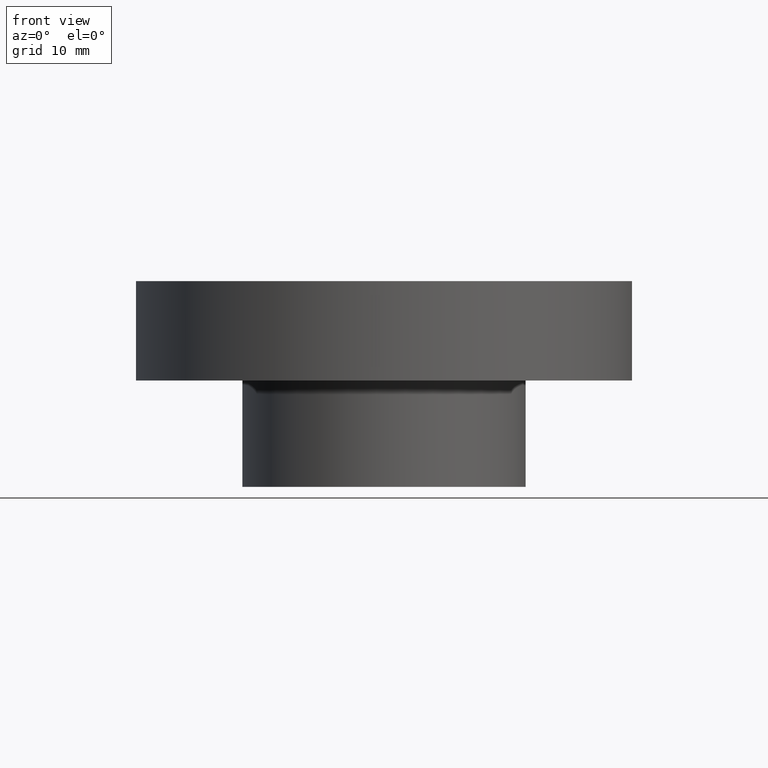
[diagram: clean part render]
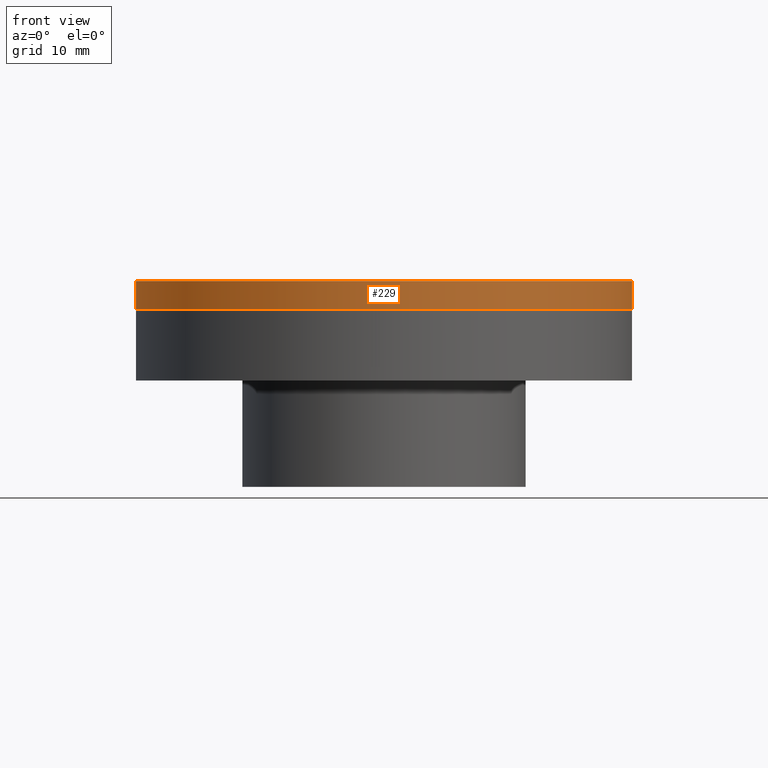
[diagram: same view with one face highlighted and labeled with its STEP entity id]
A machine part, front view. The second image highlights one B-rep face of the part: STEP entity #229.
In plain terms, the highlighted cylindrical surface (bore or boss wall) has radius 35 mm, axis along (-0, 0, -1).
Its self-contained STEP definition (entity closure, byte-faithful):
#229 = ADVANCED_FACE( '', ( #284, #285 ), #286, .T. );
#284 = FACE_OUTER_BOUND( '', #356, .T. );
#285 = FACE_OUTER_BOUND( '', #357, .T. );
#286 = CYLINDRICAL_SURFACE( '', #358, 35.0000000000000 );
#356 = EDGE_LOOP( '', ( #472 ) );
#357 = EDGE_LOOP( '', ( #473 ) );
#358 = AXIS2_PLACEMENT_3D( '', #474, #475, #476 );
#472 = ORIENTED_EDGE( '', *, *, #583, .T. );
#473 = ORIENTED_EDGE( '', *, *, #585, .F. );
#474 = CARTESIAN_POINT( '', ( 0.000000000000000, 0.000000000000000, -14.0000000000000 ) );
#475 = DIRECTION( '', ( -0.000000000000000, 0.000000000000000, -1.00000000000000 ) );
#476 = DIRECTION( '', ( -1.00000000000000, 0.000000000000000, 0.000000000000000 ) );
#583 = EDGE_CURVE( '', #645, #645, #646, .T. );
#585 = EDGE_CURVE( '', #649, #649, #650, .T. );
#645 = VERTEX_POINT( '', #847 );
#646 = CIRCLE( '', #848, 35.0000000000000 );
#649 = VERTEX_POINT( '', #851 );
#650 = CIRCLE( '', #852, 35.0000000000000 );
#847 = CARTESIAN_POINT( '', ( 35.0000000000000, 0.000000000000000, -14.0000000000000 ) );
#848 = AXIS2_PLACEMENT_3D( '', #971, #972, #973 );
#851 = CARTESIAN_POINT( '', ( 35.0000000000000, 0.000000000000000, -10.0000000000000 ) );
#852 = AXIS2_PLACEMENT_3D( '', #977, #978, #979 );
#971 = CARTESIAN_POINT( '', ( 0.000000000000000, 0.000000000000000, -14.0000000000000 ) );
#972 = DIRECTION( '', ( 0.000000000000000, -0.000000000000000, 1.00000000000000 ) );
#973 = DIRECTION( '', ( 1.00000000000000, 0.000000000000000, 0.000000000000000 ) );
#977 = CARTESIAN_POINT( '', ( 0.000000000000000, 0.000000000000000, -10.0000000000000 ) );
#978 = DIRECTION( '', ( 0.000000000000000, -0.000000000000000, 1.00000000000000 ) );
#979 = DIRECTION( '', ( 1.00000000000000, 0.000000000000000, 0.000000000000000 ) );